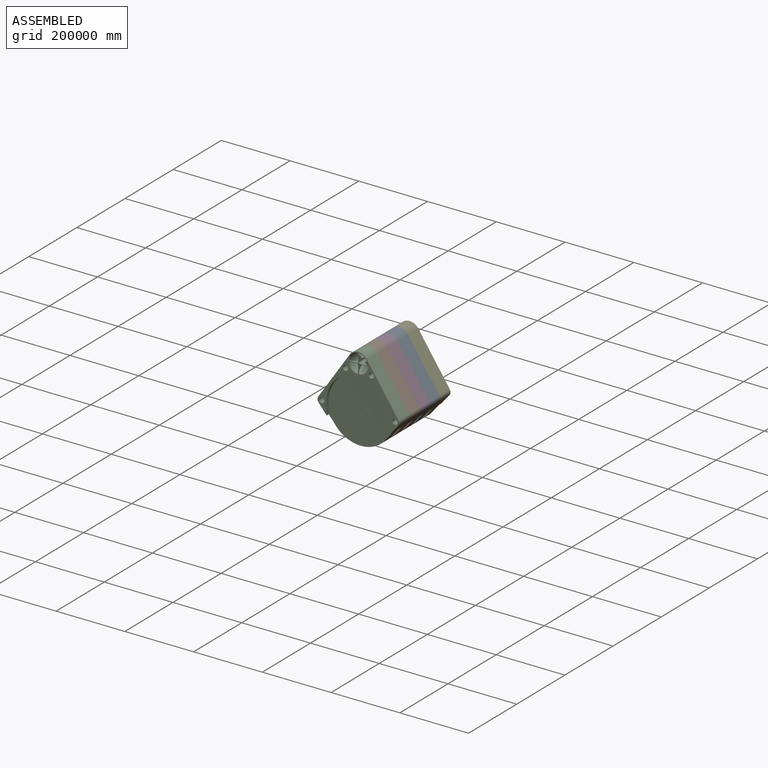
[diagram: assembled view]
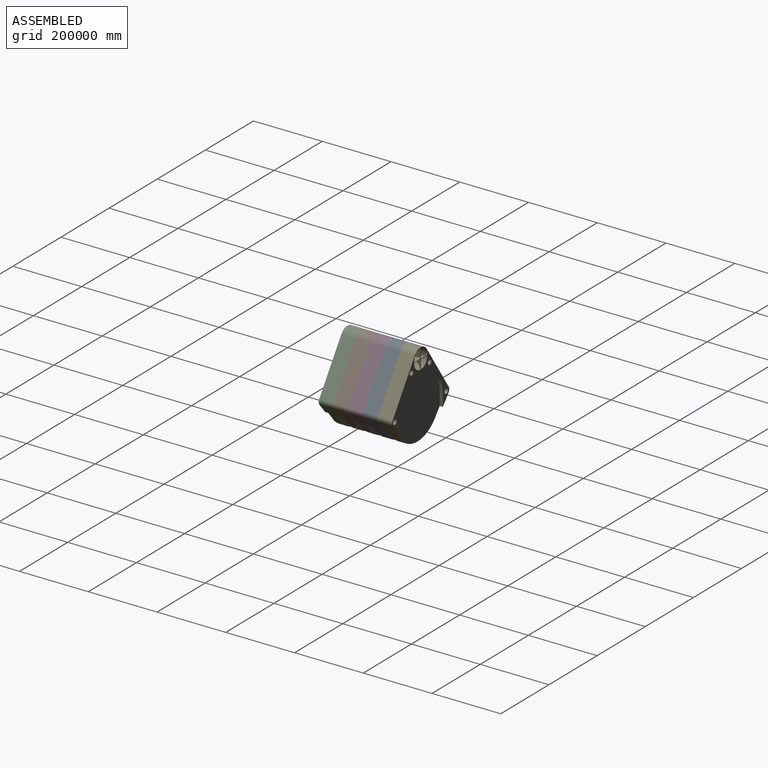
[diagram: assembled view, second angle]
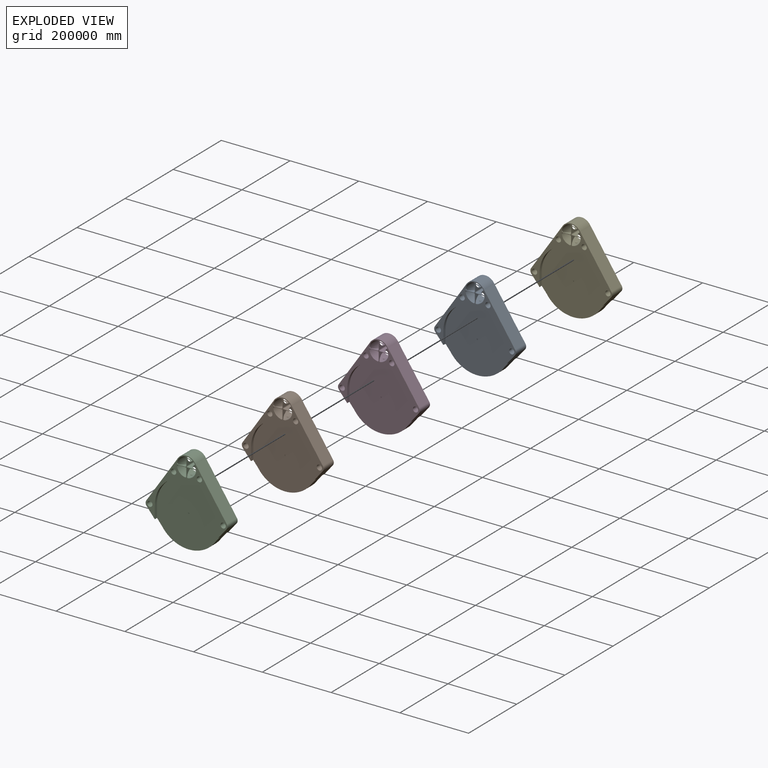
[diagram: exploded view]
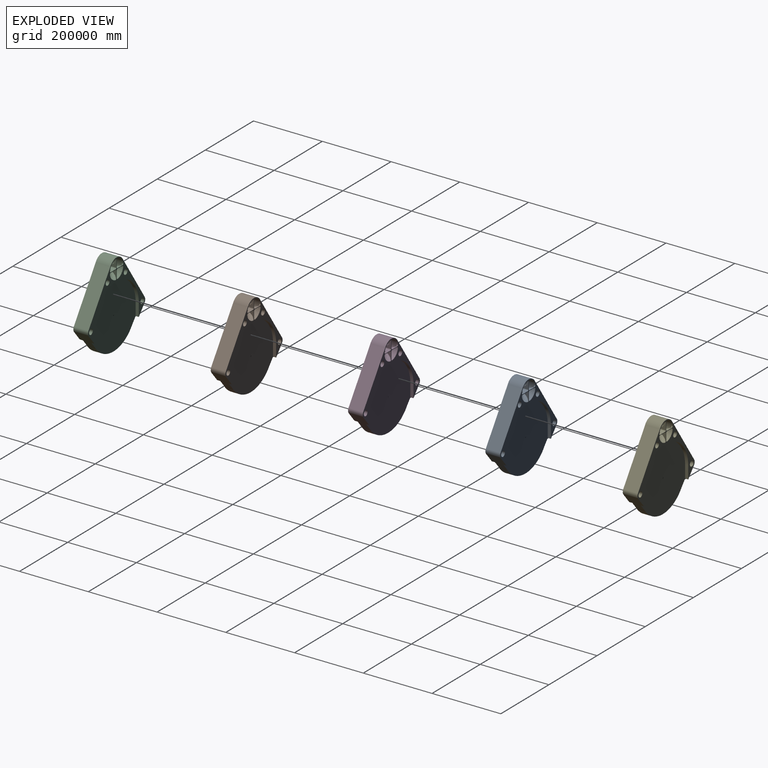
[diagram: exploded view, second angle]
ASSEMBLY  parts=5 mates=8
PART A: 108 faces, bbox 237744x44270.4x255246.7 mm
  f0: plane 11821.1x1524mm, normal (0,0,1), area 17948012.4mm2, adj f10,f12,f48,f105
  f1: plane 42672x20788.69mm, normal (0,0,1), area 376173644.7mm2, adj f16,f29,f55,f56,f64,f95,f96,f98
  f2: plane 42672x20788.69mm, normal (0,0,-1), area 376173644.7mm2, adj f16,f29,f52,f57,f65,f95,f96,f98
  f3: plane 42672x20788.69mm, normal (0,0,-1), area 376173644.7mm2, adj f16,f29,f53,f58,f68,f88,f89,f91
  f4: plane 42672x20788.69mm, normal (0,0,1), area 376173644.7mm2, adj f16,f29,f54,f59,f69,f88,f89,f91
  f5: plane 42672x20788.69mm, normal (-1,0,0), area 376173644.7mm2, adj f16,f29,f52,f60,f66,f81,f82,f84
  f6: plane 42672x20788.69mm, normal (1,0,0), area 376173644.7mm2, adj f16,f29,f53,f61,f67,f81,f82,f84
  f7: plane 42672x20788.69mm, normal (1,0,0), area 376173644.7mm2, adj f16,f29,f54,f62,f70,f74,f75,f77
  f8: plane 42672x20788.69mm, normal (-1,0,0), area 376173644.7mm2, adj f16,f29,f55,f63,f71,f74,f75,f77
  f9: cylinder r=27940mm len=42672mm, axis (0,1,0), area 1744987883.8mm2, adj f16,f29,f40,f43,f44,f45,f50,f51
  f10: cylinder r=27940mm len=42672mm, axis (0,1,0), area 1724253965.2mm2, adj f0,f16,f29,f41,f42,f46,f47,f48
  f11: cylinder r=27940mm len=42672mm, axis (0,1,0), area 1744987883.8mm2, adj f16,f29,f40,f42,f46,f47,f50,f51
  f12: cylinder r=27940mm len=42672mm, axis (0,1,0), area 1724252841.7mm2, adj f0,f16,f29,f41,f43,f44,f45,f48
  f13: cylinder r=92202mm len=184404mm, axis (0,1,0), area 7001692835.1mm2, adj f101,f102,f103
  f14: cylinder r=92202mm len=184404mm, axis (0,1,0), area 2648661334.7mm2, adj f16,f33,f34,f35
  f15: cylinder r=92202mm len=184404mm, axis (0,1,0), area 2648661334.7mm2, adj f29,f30,f31,f32
  f16: plane 237744x191875.75mm, normal (0,1,0), area 6027249956.8mm2, adj f1,f2,f3,f4,f5,f6,f7,f8
  f17: plane 46392.51x42672mm, normal (-0.77,0,-0.64), area 2153657626.6mm2, adj f16,f19,f23,f29,f30,f32,f34,f35
  f18: plane 46392.51x42672mm, normal (0.77,0,-0.64), area 2153657626.6mm2, adj f16,f19,f28,f29,f31,f32,f33,f35
  f19: cylinder r=94488mm len=154800.08mm, axis (0,1,0), area 4423353609.5mm2, adj f17,f18,f32,f35
  f20: plane 133368.58x90376.48mm, normal (0.83,0,0.56), area 6874707666.4mm2, adj f16,f21,f28,f29
  f21: cylinder r=30480mm len=52792.91mm, axis (0,1,0), area 2724059407.6mm2, adj f16,f20,f22,f29
  f22: plane 133368.58x90376.48mm, normal (-0.83,0,0.56), area 6874707666.4mm2, adj f16,f21,f23,f29
  f23: cylinder r=12192mm len=42672mm, axis (0,1,0), area 671202709mm2, adj f16,f17,f22,f29
  f24: cylinder r=7620mm len=42672mm, axis (0,1,0), area 2043044555.7mm2, adj f16,f29
  f25: cylinder r=7620mm len=42672mm, axis (0,1,0), area 2043044555.7mm2, adj f16,f29
  f26: cylinder r=7620mm len=42672mm, axis (0,1,0), area 2043044555.7mm2, adj f16,f29
  f27: cylinder r=7620mm len=42672mm, axis (0,1,0), area 2043044555.7mm2, adj f16,f29
  f28: cylinder r=12192mm len=42672mm, axis (0,1,0), area 671202709mm2, adj f16,f18,f20,f29
  f29: plane 237744x191875.75mm, normal (0,-1,0), area 6027249956.8mm2, adj f1,f2,f3,f4,f5,f6,f7,f8
  f30: plane 36427.75x9144mm, normal (1,0,0), area 333095368.2mm2, adj f15,f17,f29,f32
  f31: plane 36427.75x9144mm, normal (-1,0,0), area 333095368.2mm2, adj f15,f18,f29,f32
  f32: plane 186690x184404mm, normal (0,-1,0), area 27447133583.6mm2, adj f15,f17,f18,f19,f30,f31,f37
  f33: plane 36427.75x9144mm, normal (-1,0,0), area 333095368.2mm2, adj f14,f16,f18,f35
  f34: plane 36427.75x9144mm, normal (1,0,0), area 333095368.2mm2, adj f14,f16,f17,f35
  f35: plane 186690x184404mm, normal (0,1,0), area 27447133583.6mm2, adj f14,f17,f18,f19,f33,f34,f39
  f36: plane 178308x178308mm, normal (0,1,0), area 24889674056.3mm2, adj f37,f103
  f37: torus R=5080mm, axis (0,-1,0), area 94446673.7mm2, adj f32,f36
  f38: plane 178308x178308mm, normal (0,-1,0), area 24889674056.3mm2, adj f39,f102
  f39: torus R=5080mm, axis (0,1,0), area 94446673.7mm2, adj f35,f38
  f40: plane 32349.03x1524mm, normal (0,0,-1), area 49299924.1mm2, adj f9,f11,f50,f51
  f41: plane 11821.1x1524mm, normal (0,0,1), area 17948012.4mm2, adj f10,f12,f49,f106
  f42: plane 32349.03x1524mm, normal (-1,0,0), area 49299924.1mm2, adj f10,f11,f46,f47
  f43: plane 32349.03x1524mm, normal (1,0,0), area 49299924.1mm2, adj f9,f12,f44,f45
  f44: cylinder r=3048mm len=7299.72mm, axis (0,0,1), area 13229785.6mm2, adj f9,f12,f43,f97,f99
  f45: cylinder r=3048mm len=7299.72mm, axis (0,0,1), area 13228839.9mm2, adj f9,f12,f43,f93,f94
  f46: cylinder r=3048mm len=7299.72mm, axis (0,0,1), area 13229785.6mm2, adj f10,f11,f42,f90,f92
  f47: cylinder r=3048mm len=7299.72mm, axis (0,0,1), area 13228839.9mm2, adj f10,f11,f42,f86,f87
  f48: cylinder r=3048mm len=7299.72mm, axis (1,0,0), area 13229785.6mm2, adj f0,f10,f12,f83,f85
  f49: cylinder r=3048mm len=7299.72mm, axis (1,0,0), area 13228839.9mm2, adj f10,f12,f41,f79,f80
  f50: cylinder r=3048mm len=7299.72mm, axis (1,0,0), area 13229785.6mm2, adj f9,f11,f40,f76,f78
  f51: cylinder r=3048mm len=7299.72mm, axis (1,0,0), area 13228839.9mm2, adj f9,f11,f40,f72,f73
  f52: cylinder r=3048mm len=42672mm, axis (0,1,0), area 204304455.6mm2, adj f2,f5,f16,f29
  f53: cylinder r=3048mm len=42672mm, axis (0,-1,0), area 204304455.6mm2, adj f3,f6,f16,f29
  f54: cylinder r=3048mm len=42672mm, axis (0,1,0), area 204304455.6mm2, adj f4,f7,f16,f29
  f55: cylinder r=3048mm len=42672mm, axis (0,-1,0), area 204304455.6mm2, adj f1,f8,f16,f29
  f56: cylinder r=3048mm len=3615.37mm, axis (0,1,0), area 13080938.3mm2, adj f1,f9,f16,f93
  f57: cylinder r=3048mm len=3615.37mm, axis (0,1,0), area 13080938.3mm2, adj f2,f12,f16,f94
  f58: cylinder r=3048mm len=3615.37mm, axis (0,1,0), area 13080938.3mm2, adj f3,f10,f29,f87
  f59: cylinder r=3048mm len=3615.37mm, axis (0,1,0), area 13080938.3mm2, adj f4,f11,f29,f86
  f60: cylinder r=3048mm len=3615.37mm, axis (0,1,0), area 13080938.3mm2, adj f5,f12,f29,f80
  f61: cylinder r=3048mm len=3615.37mm, axis (0,1,0), area 13080938.3mm2, adj f6,f10,f29,f79
  f62: cylinder r=3048mm len=3615.37mm, axis (0,1,0), area 13080938.3mm2, adj f7,f11,f16,f72
  f63: cylinder r=3048mm len=3615.37mm, axis (0,1,0), area 13080938.3mm2, adj f8,f9,f16,f73
  f64: cylinder r=3048mm len=3615.37mm, axis (0,1,0), area 13080938.3mm2, adj f1,f9,f29,f97
  f65: cylinder r=3048mm len=3615.37mm, axis (0,1,0), area 13080938.3mm2, adj f2,f12,f29,f99
  f66: cylinder r=3048mm len=3615.37mm, axis (0,1,0), area 13080938.3mm2, adj f5,f12,f16,f85
  f67: cylinder r=3048mm len=3615.37mm, axis (0,1,0), area 13080938.3mm2, adj f6,f10,f16,f83
  f68: cylinder r=3048mm len=3615.37mm, axis (0,1,0), area 13080938.3mm2, adj f3,f10,f16,f92
  f69: cylinder r=3048mm len=3615.37mm, axis (0,1,0), area 13080938.3mm2, adj f4,f11,f16,f90
  f70: cylinder r=3048mm len=3615.37mm, axis (0,1,0), area 13080938.3mm2, adj f7,f11,f29,f76
  f71: cylinder r=3048mm len=3615.37mm, axis (0,1,0), area 13080938.3mm2, adj f8,f9,f29,f78
  f72: bspline ~4450.37x3174.61mm, area 4300462.7mm2, adj f11,f51,f62,f74
  f73: bspline ~4450.37x3174.61mm, area 4300462.7mm2, adj f9,f51,f63,f74
  f74: torus R=3810mm, axis (-1,0,0), area 890944.6mm2, adj f7,f8,f72,f73,f75
  f75: torus R=20269.2mm, axis (-1,0,0), area 131146077.1mm2, adj f7,f8,f74,f77
  f76: bspline ~4450.37x3174.61mm, area 4300462.7mm2, adj f11,f50,f70,f77
  f77: torus R=3810mm, axis (-1,0,0), area 890944.6mm2, adj f7,f8,f75,f76,f78
  f78: bspline ~4450.37x3174.61mm, area 4300462.7mm2, adj f9,f50,f71,f77
  f79: bspline ~4450.37x3174.61mm, area 4300462.8mm2, adj f10,f49,f61,f81
  f80: bspline ~4450.37x3174.61mm, area 4300462.8mm2, adj f12,f49,f60,f81
  f81: torus R=3810mm, axis (-1,0,0), area 890944.6mm2, adj f5,f6,f79,f80,f82
  f82: torus R=20269.2mm, axis (-1,0,0), area 131146077.1mm2, adj f5,f6,f81,f84
  f83: bspline ~4450.37x3174.61mm, area 4300462.7mm2, adj f10,f48,f67,f84
  f84: torus R=3810mm, axis (-1,0,0), area 890944.6mm2, adj f5,f6,f82,f83,f85
  f85: bspline ~4450.37x3174.61mm, area 4300462.7mm2, adj f12,f48,f66,f84
  f86: bspline ~4450.37x3174.61mm, area 4300462.7mm2, adj f11,f47,f59,f88
  f87: bspline ~4450.37x3174.61mm, area 4300462.7mm2, adj f10,f47,f58,f88
  f88: torus R=3810mm, axis (0,0,-1), area 890944.6mm2, adj f3,f4,f86,f87,f89
  f89: torus R=20269.2mm, axis (0,0,-1), area 131146077.1mm2, adj f3,f4,f88,f91
  f90: bspline ~4450.37x3174.61mm, area 4300462.7mm2, adj f11,f46,f69,f91
  f91: torus R=3810mm, axis (0,0,-1), area 890944.6mm2, adj f3,f4,f89,f90,f92
  f92: bspline ~4450.37x3174.61mm, area 4300462.7mm2, adj f10,f46,f68,f91
  f93: bspline ~4450.37x3174.61mm, area 4300462.7mm2, adj f9,f45,f56,f95
  f94: bspline ~4450.37x3174.61mm, area 4300462.7mm2, adj f12,f45,f57,f95
  f95: torus R=3810mm, axis (0,0,-1), area 890944.6mm2, adj f1,f2,f93,f94,f96
  f96: torus R=20269.2mm, axis (0,0,-1), area 131146077.1mm2, adj f1,f2,f95,f98
  f97: bspline ~4450.37x3174.61mm, area 4300462.7mm2, adj f9,f44,f64,f98
  f98: torus R=3810mm, axis (0,0,-1), area 890944.6mm2, adj f1,f2,f96,f97,f99
  f99: bspline ~4450.37x3174.61mm, area 4300462.7mm2, adj f12,f44,f65,f98
  f100: cylinder r=2032mm len=4064mm, axis (0,0,1), area 2748816.7mm2, adj f101,f104,f105,f106,f107
  f101: bspline ~8940.88x8711.26mm, area 68621261.3mm2, adj f13,f100
  f102: torus R=89154mm, axis (0,1,0), area 2740352740.4mm2, adj f13,f38
  f103: torus R=89154mm, axis (0,-1,0), area 2740352740.4mm2, adj f13,f36
  f104: bspline ~8755.91x3859.32mm, area 28036718mm2, adj f10,f100,f105,f106
  f105: torus R=4419.6mm, axis (0,0,1), area 3778427.8mm2, adj f0,f10,f12,f100,f104,f107
  f106: torus R=4419.6mm, axis (0,0,1), area 3778427.8mm2, adj f10,f12,f41,f100,f104,f107
  f107: bspline ~8755.91x3859.32mm, area 28036718mm2, adj f12,f100,f105,f106
PART B: same geometry as A
PART C: same geometry as A
PART D: same geometry as A
PART E: same geometry as A
PLACE A t=(-133121.26,-69113.26,33570.23)mm
PLACE B t=(-133121.26,-154457.26,33570.23)mm
PLACE C t=(-133121.26,-197129.26,33570.23)mm
PLACE D t=(-133121.26,-111785.26,33570.23)mm
PLACE E t=(-133121.26,-26441.26,33570.23)mm
MATE cylindrical E.f9 <-> A.f9  axis (0,1,0) through (-133121.26,-26441.26,158538.23)mm
MATE cylindrical C.f9 <-> B.f9  axis (0,1,0) through (-133121.26,-239801.26,158538.23)mm
MATE planar C.f16 <-> B.f29  axis (0,1,0) through (-225323.26,-197129.26,33570.23)mm
MATE planar A.f25 <-> D.f25  axis (0,-1,0) through (-95592.08,-111785.26,136680.82)mm
MATE planar B.f16 <-> D.f25  axis (0,1,0) through (-61536.57,-154457.26,107093.94)mm
MATE cylindrical A.f9 <-> D.f9  axis (0,1,0) through (-133121.26,-90449.26,158538.23)mm
MATE cylindrical B.f9 <-> D.f9  axis (0,-1,0) through (-133121.26,-197129.26,158538.23)mm
MATE planar E.f24 <-> A.f16  axis (0,-1,0) through (-170650.45,-69113.26,136680.82)mm
